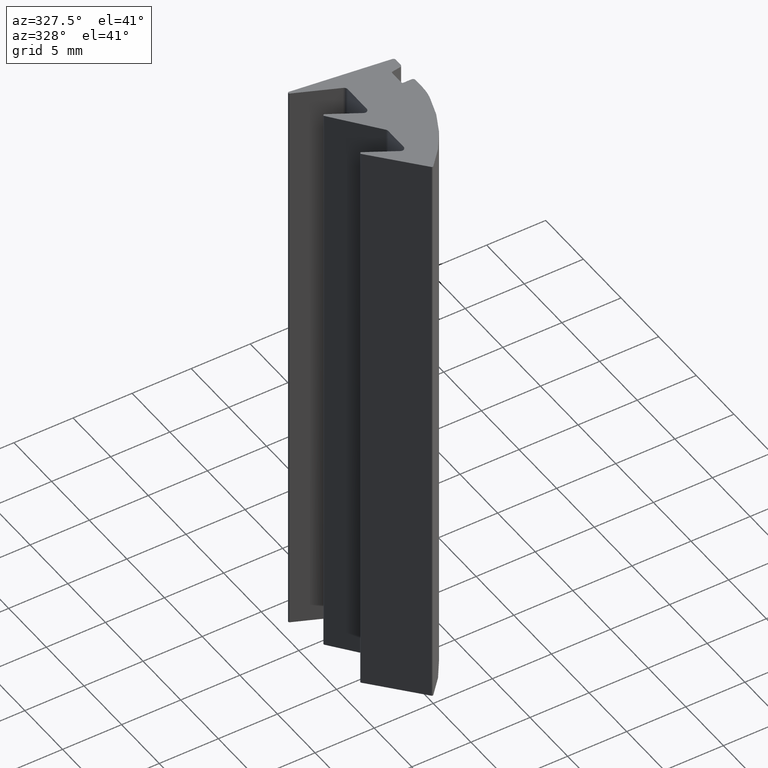
[diagram: clean part render]
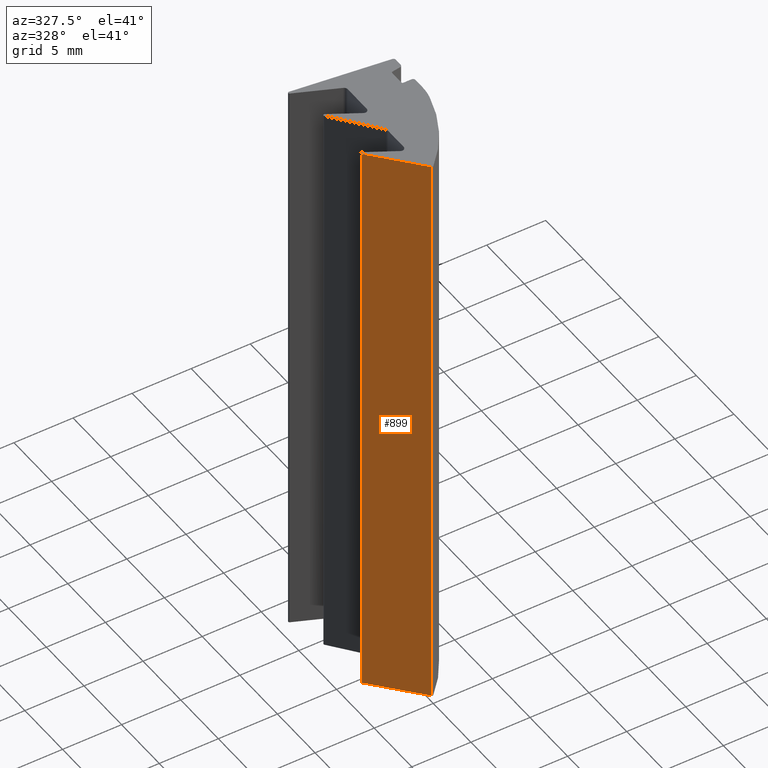
[diagram: same view with one face highlighted and labeled with its STEP entity id]
A machine part, auxiliary view. The second image highlights one B-rep face of the part: STEP entity #899.
In plain terms, the highlighted planar face has unit normal (-0.7467, -0.6652, 0).
Its self-contained STEP definition (entity closure, byte-faithful):
#7=CARTESIAN_POINT('',(-0.143060386870415,0.006437106278437,0.0));
#8=VERTEX_POINT('',#7);
#26=CARTESIAN_POINT('',(-0.143060386870415,0.006437106278437,50.0));
#27=VERTEX_POINT('',#26);
#35=CARTESIAN_POINT('',(-0.143060386870415,0.006437106278437,0.0));
#36=DIRECTION('',(0.0,0.0,1.0));
#37=VECTOR('',#36,50.0);
#38=LINE('',#35,#37);
#39=EDGE_CURVE('',#8,#27,#38,.T.);
#850=CARTESIAN_POINT('',(-3.613160398559830,3.901691224044615,0.0));
#851=VERTEX_POINT('',#850);
#859=CARTESIAN_POINT('',(-3.613160398559830,3.901691224044615,50.0));
#860=VERTEX_POINT('',#859);
#861=CARTESIAN_POINT('',(-3.613160398559830,3.901691224044615,0.0));
#862=DIRECTION('',(0.0,0.0,1.0));
#863=VECTOR('',#862,50.0);
#864=LINE('',#861,#863);
#865=EDGE_CURVE('',#851,#860,#864,.T.);
#878=CARTESIAN_POINT('',(-3.613160398559830,3.901691224044615,0.0));
#879=DIRECTION('',(-0.746680531138319,-0.665182820297547,0.0));
#880=DIRECTION('',(0.665182820297547,-0.746680531138319,0.0));
#881=AXIS2_PLACEMENT_3D('',#878,#879,#880);
#882=PLANE('',#881);
#883=CARTESIAN_POINT('',(-3.613160398559830,3.901691224044615,0.0));
#884=DIRECTION('',(0.665182820297547,-0.746680531138319,0.0));
#885=VECTOR('',#884,5.216761326062489);
#886=LINE('',#883,#885);
#887=EDGE_CURVE('',#851,#8,#886,.T.);
#888=ORIENTED_EDGE('',*,*,#887,.T.);
#889=ORIENTED_EDGE('',*,*,#39,.T.);
#890=CARTESIAN_POINT('',(-3.613160398559830,3.901691224044615,50.0));
#891=DIRECTION('',(0.665182820297547,-0.746680531138319,0.0));
#892=VECTOR('',#891,5.216761326062489);
#893=LINE('',#890,#892);
#894=EDGE_CURVE('',#860,#27,#893,.T.);
#895=ORIENTED_EDGE('',*,*,#894,.F.);
#896=ORIENTED_EDGE('',*,*,#865,.F.);
#897=EDGE_LOOP('',(#888,#889,#895,#896));
#898=FACE_OUTER_BOUND('',#897,.T.);
#899=ADVANCED_FACE('',(#898),#882,.T.);